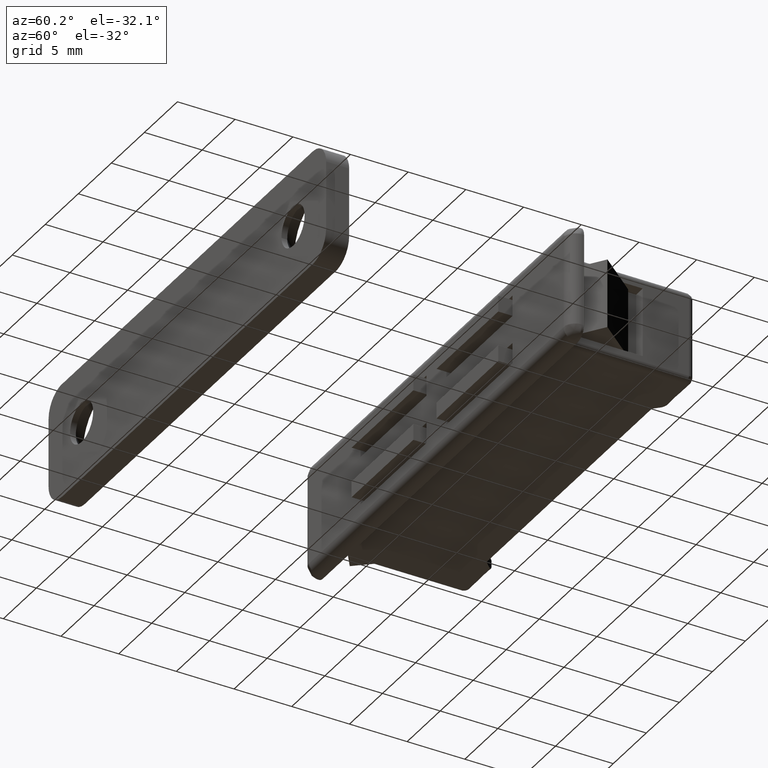
[diagram: clean part render]
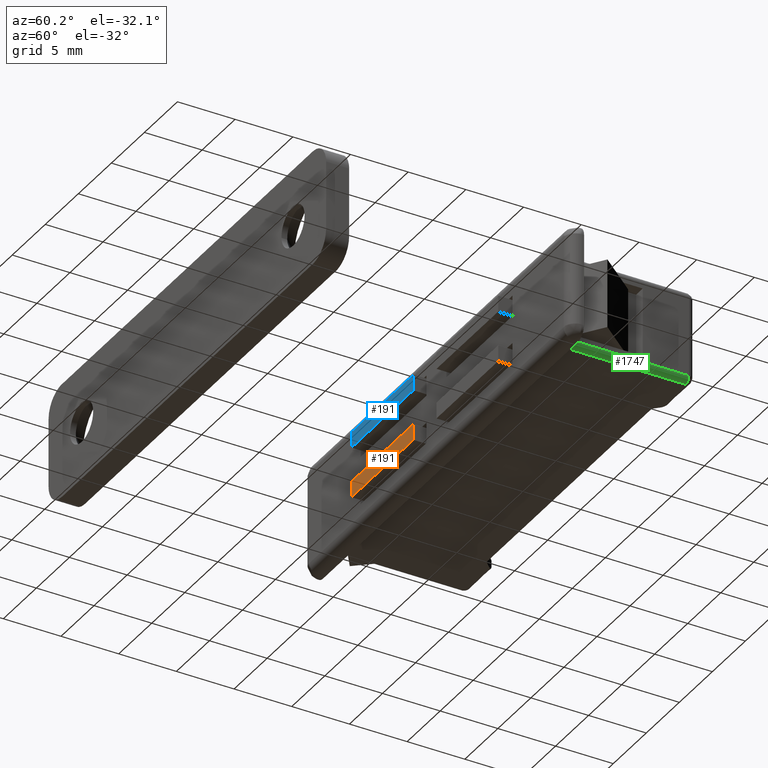
[diagram: same view with three faces highlighted in distinct colors, each labeled with its STEP entity id]
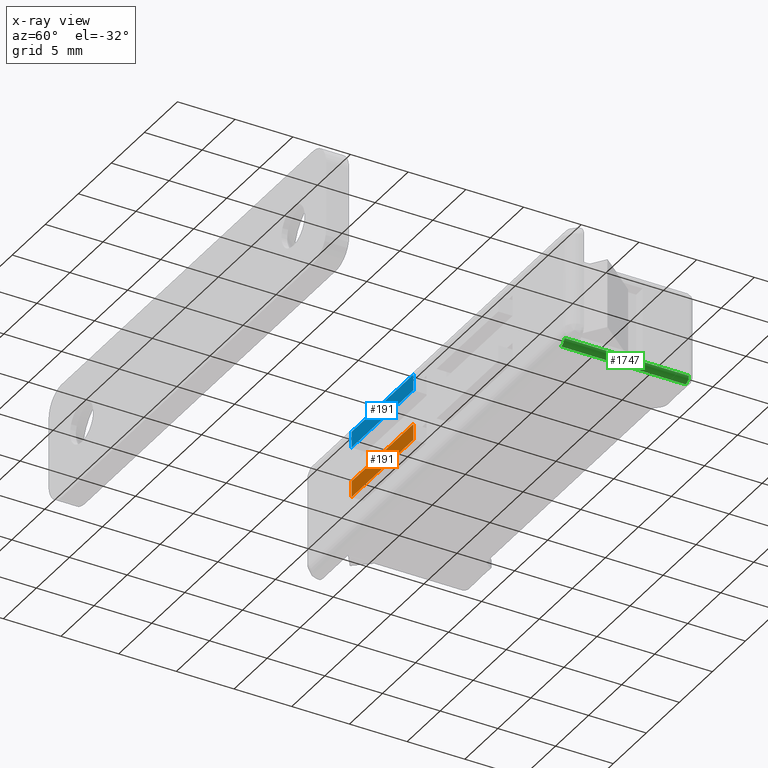
[diagram: x-ray of the same camera — body ghosted, the three highlighted faces saturated]
A machine part, auxiliary view with three faces highlighted in distinct colors.
The next image is the same camera in x-ray (body ghosted, the three faces saturated) — at least one of them is partly hidden behind the body in this view.
Their STEP definitions:

[orange] entity #191 — the highlighted face is a freeform B-spline surface patch.
#49=CARTESIAN_POINT('',(-1.750000000000000,-13.500000000000000,2.900009000000000));
#50=VERTEX_POINT('',#49);
#93=CARTESIAN_POINT('',(-11.100002000000000,-13.500000000000000,2.900009000000000));
#94=VERTEX_POINT('',#93);
#100=CARTESIAN_POINT('',(-11.100002000000000,-13.500000000000000,2.900009000000000));
#101=CARTESIAN_POINT('',(-1.750000000000000,-13.500000000000000,2.900009000000000));
#102=QUASI_UNIFORM_CURVE('',1,(#100,#101),.UNSPECIFIED.,.F.,.U.);
#103=EDGE_CURVE('',#94,#50,#102,.T.);
#113=CARTESIAN_POINT('',(-1.750000000000000,-13.500000000000000,1.499999999999946));
#114=VERTEX_POINT('',#113);
#122=CARTESIAN_POINT('',(-11.100002000000000,-13.500000000000000,1.499999999999946));
#123=VERTEX_POINT('',#122);
#124=CARTESIAN_POINT('',(-11.100002000000000,-13.500000000000000,1.499999999999946));
#125=CARTESIAN_POINT('',(-1.750000000000000,-13.500000000000000,1.499999999999946));
#126=QUASI_UNIFORM_CURVE('',1,(#124,#125),.UNSPECIFIED.,.F.,.U.);
#127=EDGE_CURVE('',#123,#114,#126,.T.);
#172=CARTESIAN_POINT('',(-11.567034932862400,-13.500000000000000,2.969939367982817));
#173=CARTESIAN_POINT('',(-11.567034932862400,-13.500000000000000,1.430069519363626));
#174=CARTESIAN_POINT('',(-1.282967150733134,-13.500000000000000,2.969939367982817));
#175=CARTESIAN_POINT('',(-1.282967150733134,-13.500000000000000,1.430069519363626));
#176=B_SPLINE_SURFACE_WITH_KNOTS('',1,1,((#172,#174),(#173,#175)),.UNSPECIFIED.,.F.,.F.,.U.,(2,2),(2,2),(0.041708381884918,0.958291685170308),(0.0,10.284067782129270),.UNSPECIFIED.);
#177=ORIENTED_EDGE('',*,*,#103,.F.);
#178=CARTESIAN_POINT('',(-11.100002000000000,-13.500000000000000,1.499999999999946));
#179=CARTESIAN_POINT('',(-11.100002000000000,-13.500000000000000,2.900009000000000));
#180=QUASI_UNIFORM_CURVE('',1,(#178,#179),.UNSPECIFIED.,.F.,.U.);
#181=EDGE_CURVE('',#123,#94,#180,.T.);
#182=ORIENTED_EDGE('',*,*,#181,.F.);
#183=ORIENTED_EDGE('',*,*,#127,.T.);
#184=CARTESIAN_POINT('',(-1.750000000000000,-13.500000000000000,1.499999999999946));
#185=CARTESIAN_POINT('',(-1.750000000000000,-13.500000000000000,2.900009000000000));
#186=QUASI_UNIFORM_CURVE('',1,(#184,#185),.UNSPECIFIED.,.F.,.U.);
#187=EDGE_CURVE('',#114,#50,#186,.T.);
#188=ORIENTED_EDGE('',*,*,#187,.T.);
#189=EDGE_LOOP('',(#177,#182,#183,#188));
#190=FACE_OUTER_BOUND('',#189,.T.);
#191=ADVANCED_FACE('',(#190),#176,.T.);

[blue] entity #191 — the highlighted face is a freeform B-spline surface patch.
#49=CARTESIAN_POINT('',(-1.750000000000000,-13.500000000000000,2.900009000000000));
#50=VERTEX_POINT('',#49);
#93=CARTESIAN_POINT('',(-11.100002000000000,-13.500000000000000,2.900009000000000));
#94=VERTEX_POINT('',#93);
#100=CARTESIAN_POINT('',(-11.100002000000000,-13.500000000000000,2.900009000000000));
#101=CARTESIAN_POINT('',(-1.750000000000000,-13.500000000000000,2.900009000000000));
#102=QUASI_UNIFORM_CURVE('',1,(#100,#101),.UNSPECIFIED.,.F.,.U.);
#103=EDGE_CURVE('',#94,#50,#102,.T.);
#113=CARTESIAN_POINT('',(-1.750000000000000,-13.500000000000000,1.499999999999946));
#114=VERTEX_POINT('',#113);
#122=CARTESIAN_POINT('',(-11.100002000000000,-13.500000000000000,1.499999999999946));
#123=VERTEX_POINT('',#122);
#124=CARTESIAN_POINT('',(-11.100002000000000,-13.500000000000000,1.499999999999946));
#125=CARTESIAN_POINT('',(-1.750000000000000,-13.500000000000000,1.499999999999946));
#126=QUASI_UNIFORM_CURVE('',1,(#124,#125),.UNSPECIFIED.,.F.,.U.);
#127=EDGE_CURVE('',#123,#114,#126,.T.);
#172=CARTESIAN_POINT('',(-11.567034932862400,-13.500000000000000,2.969939367982817));
#173=CARTESIAN_POINT('',(-11.567034932862400,-13.500000000000000,1.430069519363626));
#174=CARTESIAN_POINT('',(-1.282967150733134,-13.500000000000000,2.969939367982817));
#175=CARTESIAN_POINT('',(-1.282967150733134,-13.500000000000000,1.430069519363626));
#176=B_SPLINE_SURFACE_WITH_KNOTS('',1,1,((#172,#174),(#173,#175)),.UNSPECIFIED.,.F.,.F.,.U.,(2,2),(2,2),(0.041708381884918,0.958291685170308),(0.0,10.284067782129270),.UNSPECIFIED.);
#177=ORIENTED_EDGE('',*,*,#103,.F.);
#178=CARTESIAN_POINT('',(-11.100002000000000,-13.500000000000000,1.499999999999946));
#179=CARTESIAN_POINT('',(-11.100002000000000,-13.500000000000000,2.900009000000000));
#180=QUASI_UNIFORM_CURVE('',1,(#178,#179),.UNSPECIFIED.,.F.,.U.);
#181=EDGE_CURVE('',#123,#94,#180,.T.);
#182=ORIENTED_EDGE('',*,*,#181,.F.);
#183=ORIENTED_EDGE('',*,*,#127,.T.);
#184=CARTESIAN_POINT('',(-1.750000000000000,-13.500000000000000,1.499999999999946));
#185=CARTESIAN_POINT('',(-1.750000000000000,-13.500000000000000,2.900009000000000));
#186=QUASI_UNIFORM_CURVE('',1,(#184,#185),.UNSPECIFIED.,.F.,.U.);
#187=EDGE_CURVE('',#114,#50,#186,.T.);
#188=ORIENTED_EDGE('',*,*,#187,.T.);
#189=EDGE_LOOP('',(#177,#182,#183,#188));
#190=FACE_OUTER_BOUND('',#189,.T.);
#191=ADVANCED_FACE('',(#190),#176,.T.);

[green] entity #1747 — the highlighted face is a freeform B-spline surface patch.
#1624=CARTESIAN_POINT('',(16.750000000000000,-0.500000000000000,-4.0));
#1625=VERTEX_POINT('',#1624);
#1671=CARTESIAN_POINT('',(17.250000000000000,-0.500000000000000,-3.500000000000060));
#1672=VERTEX_POINT('',#1671);
#1686=CARTESIAN_POINT('',(17.250000000000000,-0.500000000000000,-3.500000000000060));
#1687=CARTESIAN_POINT('',(17.249999999999940,-0.500000000000000,-4.0));
#1688=CARTESIAN_POINT('',(16.750000000000000,-0.500000000000000,-4.0));
#1696=(BOUNDED_CURVE()B_SPLINE_CURVE(2,(#1686,#1687,#1688),.UNSPECIFIED.,.F.,.U.)CURVE()GEOMETRIC_REPRESENTATION_ITEM()QUASI_UNIFORM_CURVE()RATIONAL_B_SPLINE_CURVE((1.0,0.707106781186590,1.0))REPRESENTATION_ITEM(''));
#1697=EDGE_CURVE('',#1672,#1625,#1696,.T.);
#1703=CARTESIAN_POINT('',(17.249828662487779,-0.229999925000000,-3.486911525846063));
#1704=CARTESIAN_POINT('',(17.249828662487779,-11.576753076874979,-3.486911525846063));
#1705=CARTESIAN_POINT('',(17.264246130083126,-0.229999925000000,-4.037492400277362));
#1706=CARTESIAN_POINT('',(17.264246130083126,-11.576753076874981,-4.037492400277362));
#1707=CARTESIAN_POINT('',(16.714839962187007,-0.229999925000000,-3.998762239690406));
#1708=CARTESIAN_POINT('',(16.714839962187007,-11.576753076874981,-3.998762239690406));
#1716=(BOUNDED_SURFACE()B_SPLINE_SURFACE(1,2,((#1703,#1705,#1707),(#1704,#1706,#1708)),.UNSPECIFIED.,.F.,.F.,.U.)B_SPLINE_SURFACE_WITH_KNOTS((2,2),(3,3),(0.0,11.346753151874980),(0.0,0.994518632334191),.UNSPECIFIED.)GEOMETRIC_REPRESENTATION_ITEM()RATIONAL_B_SPLINE_SURFACE(((1.0,0.670944223154768,0.996392648609106),(1.0,0.670944223154768,0.996392648609106)))REPRESENTATION_ITEM('')SURFACE());
#1717=ORIENTED_EDGE('',*,*,#1697,.F.);
#1718=CARTESIAN_POINT('',(17.250000000000000,-11.300002999999981,-3.500000000000060));
#1719=VERTEX_POINT('',#1718);
#1720=CARTESIAN_POINT('',(17.250000000000000,-11.300002999999981,-3.500000000000060));
#1721=CARTESIAN_POINT('',(17.250000000000000,-0.500000000000000,-3.500000000000060));
#1722=QUASI_UNIFORM_CURVE('',1,(#1720,#1721),.UNSPECIFIED.,.F.,.U.);
#1723=EDGE_CURVE('',#1719,#1672,#1722,.T.);
#1724=ORIENTED_EDGE('',*,*,#1723,.F.);
#1725=CARTESIAN_POINT('',(16.750000000000000,-11.300002999999981,-4.0));
#1726=VERTEX_POINT('',#1725);
#1727=CARTESIAN_POINT('',(16.750000000000000,-11.300002999999981,-4.0));
#1728=CARTESIAN_POINT('',(17.249999999999943,-11.300002999999981,-4.000000000000000));
#1729=CARTESIAN_POINT('',(17.250000000000000,-11.300002999999981,-3.500000000000060));
#1737=(BOUNDED_CURVE()B_SPLINE_CURVE(2,(#1727,#1728,#1729),.UNSPECIFIED.,.F.,.U.)CURVE()GEOMETRIC_REPRESENTATION_ITEM()QUASI_UNIFORM_CURVE()RATIONAL_B_SPLINE_CURVE((1.0,0.707106781186590,1.0))REPRESENTATION_ITEM(''));
#1738=EDGE_CURVE('',#1726,#1719,#1737,.T.);
#1739=ORIENTED_EDGE('',*,*,#1738,.F.);
#1740=CARTESIAN_POINT('',(16.750000000000000,-0.500000000000000,-4.0));
#1741=CARTESIAN_POINT('',(16.750000000000000,-11.300002999999981,-4.0));
#1742=QUASI_UNIFORM_CURVE('',1,(#1740,#1741),.UNSPECIFIED.,.F.,.U.);
#1743=EDGE_CURVE('',#1625,#1726,#1742,.T.);
#1744=ORIENTED_EDGE('',*,*,#1743,.F.);
#1745=EDGE_LOOP('',(#1717,#1724,#1739,#1744));
#1746=FACE_OUTER_BOUND('',#1745,.T.);
#1747=ADVANCED_FACE('',(#1746),#1716,.T.);